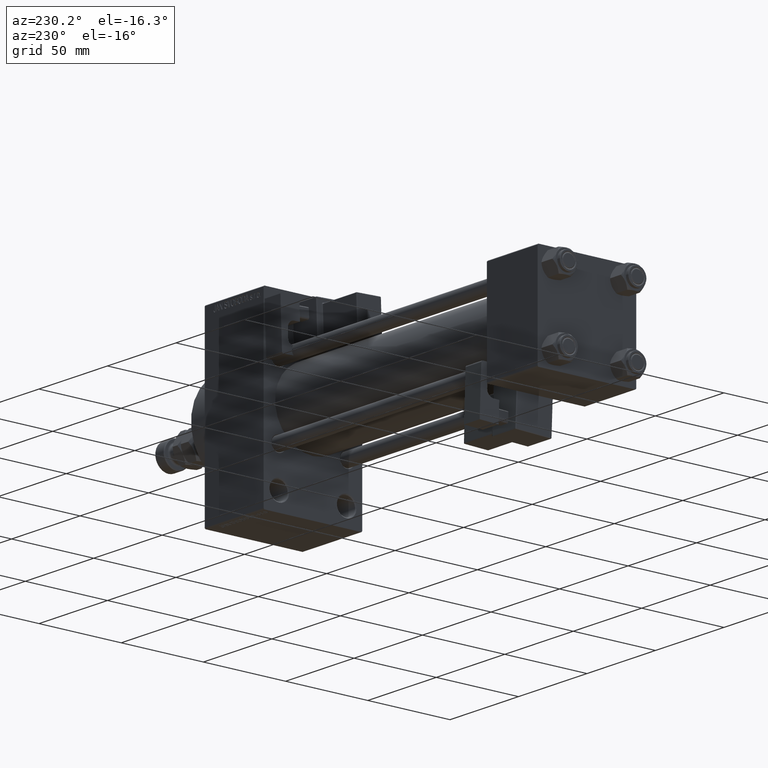
[diagram: clean part render]
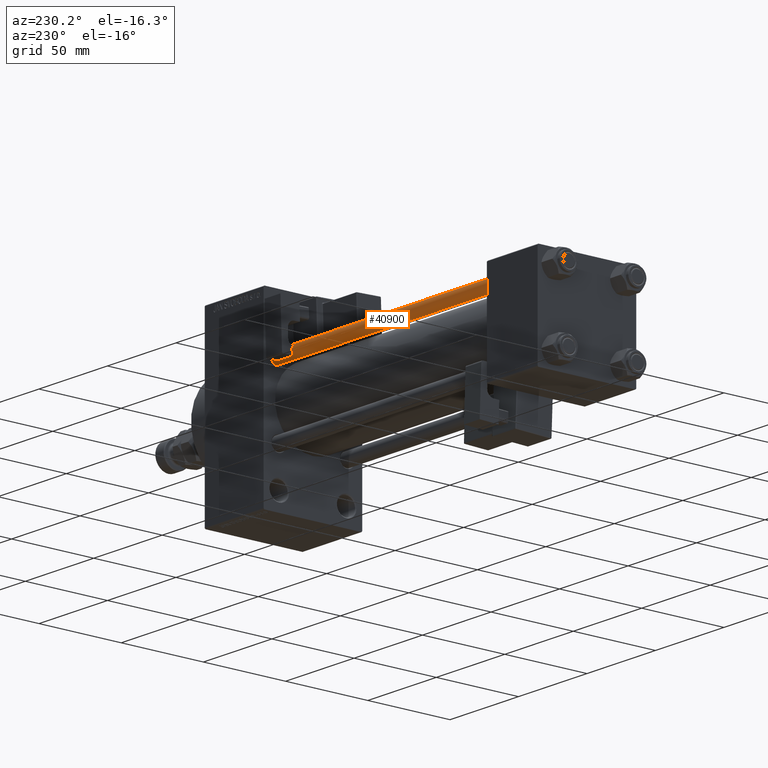
[diagram: same view with one face highlighted and labeled with its STEP entity id]
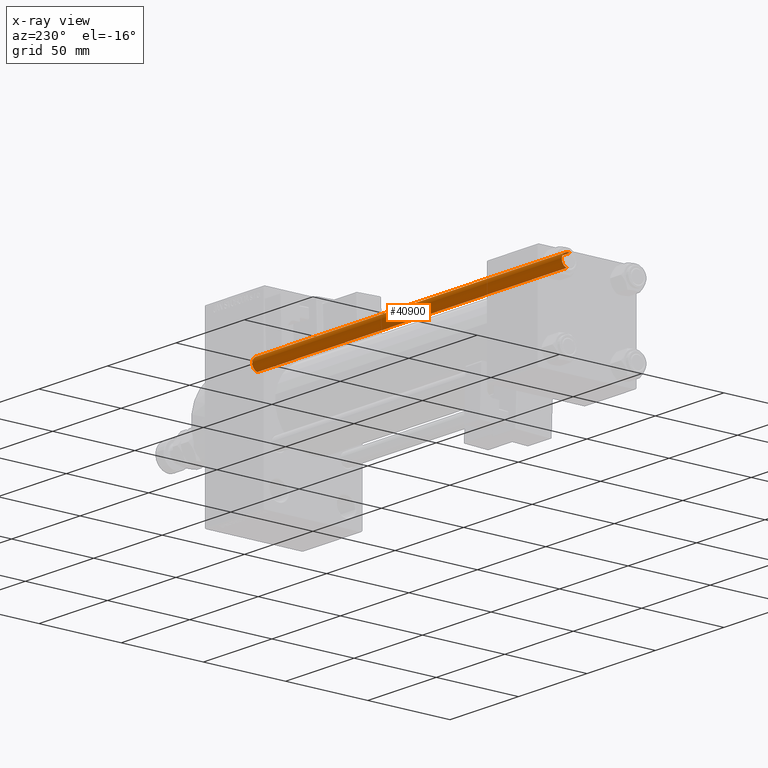
[diagram: x-ray of the same camera — body ghosted, the highlighted face saturated]
A machine part, auxiliary view. The second image highlights one B-rep face of the part: STEP entity #40900.
The next image is the same camera in x-ray: the body ghosted, the highlighted face saturated — about 0% of this face is hidden behind the body in this view.
In plain terms, the highlighted cylindrical surface (edge-blend (fillet) strip) has radius 4 mm, axis along (-1, -0, 0).
Its self-contained STEP definition (entity closure, byte-faithful):
#725 = FACE_OUTER_BOUND ( 'NONE', #14820, .T. ) ;
#972 = DIRECTION ( 'NONE',  ( 1.000000000000000000, 0.000000000000000000, 0.000000000000000000 ) ) ;
#989 = ORIENTED_EDGE ( 'NONE', *, *, #33413, .T. ) ;
#1146 = VECTOR ( 'NONE', #45040, 1000.000000000000000 ) ;
#3859 = CARTESIAN_POINT ( 'NONE',  ( 4.000000000000000000, 4.898587196589411843E-16, 226.5000000000001421 ) ) ;
#4118 = CARTESIAN_POINT ( 'NONE',  ( 0.000000000000000000, 0.000000000000000000, 0.5000000000002224887 ) ) ;
#4827 = VECTOR ( 'NONE', #31689, 1000.000000000000000 ) ;
#6486 = EDGE_CURVE ( 'NONE', #8013, #43819, #21681, .T. ) ;
#7028 = DIRECTION ( 'NONE',  ( 1.000000000000000000, 0.000000000000000000, 0.000000000000000000 ) ) ;
#8013 = VERTEX_POINT ( 'NONE', #10325 ) ;
#8254 = DIRECTION ( 'NONE',  ( -0.000000000000000000, -0.000000000000000000, -1.000000000000000000 ) ) ;
#8432 = CARTESIAN_POINT ( 'NONE',  ( -4.000000000000000000, 0.000000000000000000, 0.5000000000002224887 ) ) ;
#8575 = LINE ( 'NONE', #35579, #4827 ) ;
#10325 = CARTESIAN_POINT ( 'NONE',  ( -4.000000000000000000, 0.000000000000000000, 226.5000000000001421 ) ) ;
#10342 = ORIENTED_EDGE ( 'NONE', *, *, #6486, .F. ) ;
#11170 = CARTESIAN_POINT ( 'NONE',  ( 0.000000000000000000, 0.000000000000000000, 226.5000000000001421 ) ) ;
#12909 = ORIENTED_EDGE ( 'NONE', *, *, #25752, .T. ) ;
#13462 = VERTEX_POINT ( 'NONE', #3859 ) ;
#14815 = DIRECTION ( 'NONE',  ( 0.000000000000000000, 0.000000000000000000, -1.000000000000000000 ) ) ;
#14820 = EDGE_LOOP ( 'NONE', ( #32095, #12909, #989, #10342 ) ) ;
#17401 = CIRCLE ( 'NONE', #40579, 4.000000000000000000 ) ;
#21681 = LINE ( 'NONE', #44285, #1146 ) ;
#24333 = DIRECTION ( 'NONE',  ( -0.000000000000000000, -0.000000000000000000, 1.000000000000000000 ) ) ;
#25752 = EDGE_CURVE ( 'NONE', #13462, #28381, #8575, .T. ) ;
#27972 = CYLINDRICAL_SURFACE ( 'NONE', #39119, 4.000000000000000000 ) ;
#28381 = VERTEX_POINT ( 'NONE', #45421 ) ;
#30110 = CIRCLE ( 'NONE', #45831, 4.000000000000000000 ) ;
#31689 = DIRECTION ( 'NONE',  ( -0.000000000000000000, -0.000000000000000000, -1.000000000000000000 ) ) ;
#32095 = ORIENTED_EDGE ( 'NONE', *, *, #43150, .T. ) ;
#33413 = EDGE_CURVE ( 'NONE', #28381, #43819, #17401, .T. ) ;
#35579 = CARTESIAN_POINT ( 'NONE',  ( 4.000000000000000000, 4.898587196589411843E-16, 227.0000000000000000 ) ) ;
#39119 = AXIS2_PLACEMENT_3D ( 'NONE', #43791, #8254, #48183 ) ;
#40579 = AXIS2_PLACEMENT_3D ( 'NONE', #4118, #24333, #972 ) ;
#40900 = ADVANCED_FACE ( 'NONE', ( #725 ), #27972, .T. ) ;
#43150 = EDGE_CURVE ( 'NONE', #8013, #13462, #30110, .T. ) ;
#43791 = CARTESIAN_POINT ( 'NONE',  ( 0.000000000000000000, 0.000000000000000000, 227.0000000000000000 ) ) ;
#43819 = VERTEX_POINT ( 'NONE', #8432 ) ;
#44285 = CARTESIAN_POINT ( 'NONE',  ( -4.000000000000000000, 0.000000000000000000, 227.0000000000000000 ) ) ;
#45040 = DIRECTION ( 'NONE',  ( -0.000000000000000000, -0.000000000000000000, -1.000000000000000000 ) ) ;
#45421 = CARTESIAN_POINT ( 'NONE',  ( 4.000000000000000000, 4.898587196589411843E-16, 0.5000000000002224887 ) ) ;
#45831 = AXIS2_PLACEMENT_3D ( 'NONE', #11170, #14815, #7028 ) ;
#48183 = DIRECTION ( 'NONE',  ( -1.000000000000000000, 0.000000000000000000, 0.000000000000000000 ) ) ;